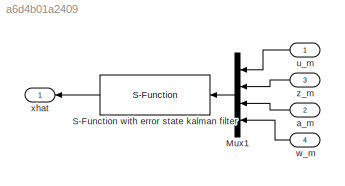
MODEL slx_a6d4b01a2409
KIND model
CONFIG AbsTol = auto
CONFIG FixedStep = auto
CONFIG MaxStep = auto
CONFIG MinStep = auto
CONFIG RelTol = 1e-3
CONFIG SampleTimeConstraint = Unconstrained
CONFIG Solver = VariableStepAuto
CONFIG SolverMode = Auto
CONFIG SolverName = VariableStepAuto
CONFIG StartTime = 0.0
CONFIG StopTime = 10.0
BLOCK [Mux] Mux1
  DisplayOption = bar
  Ports = [4, 1]
BLOCK [S-Function] S-Function with error state kalman filter
  EnableBusSupport = off
  FunctionName = ESKF_sfunc
  Parameters = ESKFparam
  Ports = [1, 1]
  SFunctionDeploymentMode = off
BLOCK [Inport] a_m
  IconDisplay = Port number
  Port = 2
  PortDimensions = 3
BLOCK [Inport] u_m
  IconDisplay = Port number
  PortDimensions = ESKFparam.nC
BLOCK [Inport] w_m
  IconDisplay = Port number
  Port = 4
  PortDimensions = 3
BLOCK [Outport] xhat
  IconDisplay = Port number
BLOCK [Inport] z_m
  IconDisplay = Port number
  Port = 3
  PortDimensions = ESKFparam.nZ
LINE Mux1:1 -> S-Function with error state kalman filter:1
LINE S-Function with error state kalman filter:1 -> xhat:1
LINE a_m:1 -> Mux1:3
LINE u_m:1 -> Mux1:1
LINE w_m:1 -> Mux1:4
LINE z_m:1 -> Mux1:2
